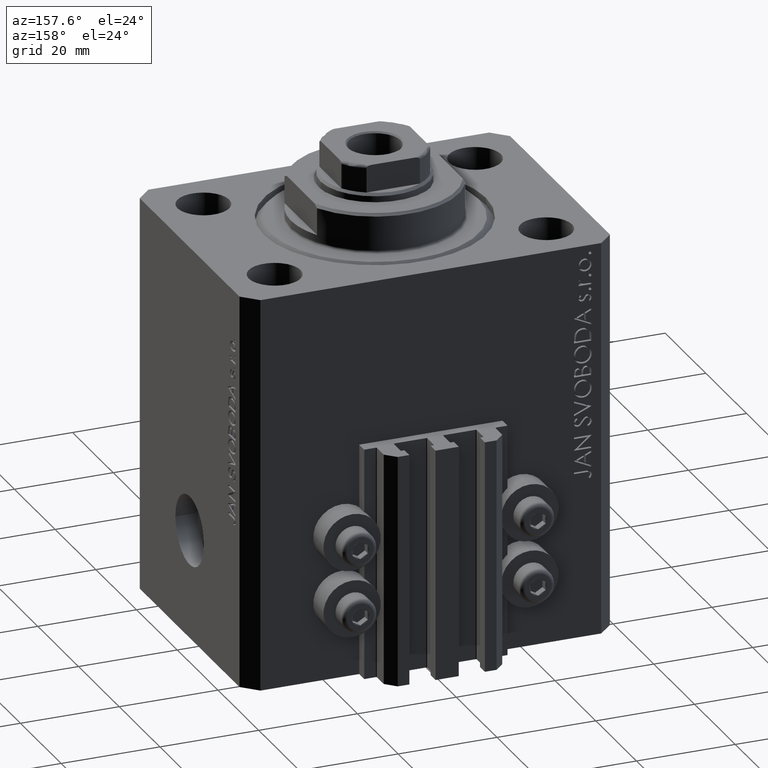
[diagram: clean part render]
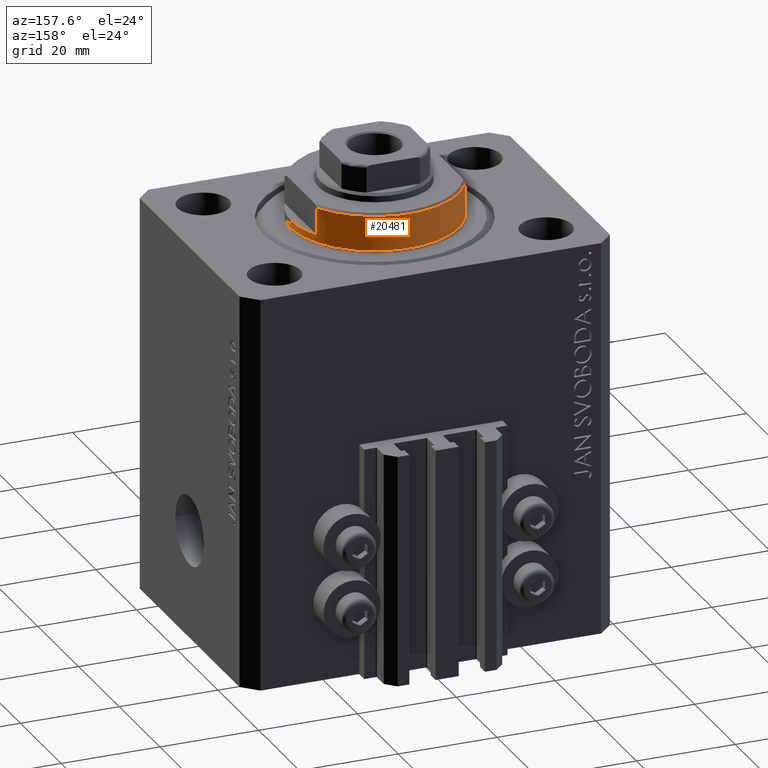
[diagram: same view with one face highlighted and labeled with its STEP entity id]
A machine part, auxiliary view. The second image highlights one B-rep face of the part: STEP entity #20481.
In plain terms, the highlighted cylindrical surface (partial cylindrical patch) has radius 17 mm, axis along (0, 0, -1).
Its self-contained STEP definition (entity closure, byte-faithful):
#24 = CARTESIAN_POINT ( 'NONE',  ( 0.000000000000000000, 0.000000000000000000, -7.500000000000007105 ) ) ;
#754 = VERTEX_POINT ( 'NONE', #47431 ) ;
#2005 = EDGE_CURVE ( 'NONE', #22467, #18962, #42855, .T. ) ;
#2058 = CARTESIAN_POINT ( 'NONE',  ( 14.99999999999999645, 8.000000000000003553, -2.000000000000000000 ) ) ;
#3001 = VERTEX_POINT ( 'NONE', #2058 ) ;
#3393 = DIRECTION ( 'NONE',  ( 0.000000000000000000, 0.000000000000000000, 1.000000000000000000 ) ) ;
#3606 = CARTESIAN_POINT ( 'NONE',  ( 17.00000000000000000, 0.000000000000000000, -8.000000000000000000 ) ) ;
#3820 = DIRECTION ( 'NONE',  ( -1.000000000000000000, 0.000000000000000000, 0.000000000000000000 ) ) ;
#3859 = CARTESIAN_POINT ( 'NONE',  ( -14.99999999999999645, 8.000000000000003553, -2.000000000000000000 ) ) ;
#4101 = CARTESIAN_POINT ( 'NONE',  ( 15.00000000000000000, 8.000000000000001776, -7.500000000000007105 ) ) ;
#4424 = DIRECTION ( 'NONE',  ( -0.000000000000000000, -0.000000000000000000, 1.000000000000000000 ) ) ;
#5424 = EDGE_CURVE ( 'NONE', #3001, #23456, #23055, .T. ) ;
#6658 = DIRECTION ( 'NONE',  ( -0.000000000000000000, -0.000000000000000000, 1.000000000000000000 ) ) ;
#7577 = CARTESIAN_POINT ( 'NONE',  ( -15.00000000000000000, 8.000000000000001776, -7.500000000000007105 ) ) ;
#7832 = ORIENTED_EDGE ( 'NONE', *, *, #15725, .F. ) ;
#8002 = LINE ( 'NONE', #22681, #15653 ) ;
#8387 = EDGE_CURVE ( 'NONE', #34349, #19575, #45044, .T. ) ;
#9679 = LINE ( 'NONE', #32663, #42095 ) ;
#10891 = CARTESIAN_POINT ( 'NONE',  ( 0.000000000000000000, 0.000000000000000000, -0.5000000000000004441 ) ) ;
#11125 = DIRECTION ( 'NONE',  ( 1.000000000000000000, 0.000000000000000000, 0.000000000000000000 ) ) ;
#13075 = CARTESIAN_POINT ( 'NONE',  ( 0.000000000000000000, 0.000000000000000000, -8.000000000000000000 ) ) ;
#14904 = DIRECTION ( 'NONE',  ( -0.000000000000000000, -0.000000000000000000, 1.000000000000000000 ) ) ;
#15653 = VECTOR ( 'NONE', #4424, 1000.000000000000000 ) ;
#15725 = EDGE_CURVE ( 'NONE', #23456, #754, #44413, .T. ) ;
#16125 = AXIS2_PLACEMENT_3D ( 'NONE', #13075, #21009, #35646 ) ;
#16712 = ORIENTED_EDGE ( 'NONE', *, *, #2005, .F. ) ;
#17092 = EDGE_CURVE ( 'NONE', #23515, #754, #40548, .T. ) ;
#17632 = CARTESIAN_POINT ( 'NONE',  ( 0.000000000000000000, 0.000000000000000000, -2.000000000000000000 ) ) ;
#18775 = EDGE_CURVE ( 'NONE', #19575, #18962, #9679, .T. ) ;
#18962 = VERTEX_POINT ( 'NONE', #3859 ) ;
#19575 = VERTEX_POINT ( 'NONE', #7577 ) ;
#20481 = ADVANCED_FACE ( 'NONE', ( #24842 ), #32033, .T. ) ;
#20745 = DIRECTION ( 'NONE',  ( -0.000000000000000000, -0.000000000000000000, 1.000000000000000000 ) ) ;
#21009 = DIRECTION ( 'NONE',  ( -0.000000000000000000, -0.000000000000000000, 1.000000000000000000 ) ) ;
#21234 = DIRECTION ( 'NONE',  ( 0.000000000000000000, 0.000000000000000000, -1.000000000000000000 ) ) ;
#22467 = VERTEX_POINT ( 'NONE', #44802 ) ;
#22681 = CARTESIAN_POINT ( 'NONE',  ( 15.00000000000000000, 8.000000000000001776, -8.000000000000000000 ) ) ;
#22997 = ORIENTED_EDGE ( 'NONE', *, *, #34815, .F. ) ;
#23055 = CIRCLE ( 'NONE', #34523, 17.00000000000000000 ) ;
#23456 = VERTEX_POINT ( 'NONE', #24142 ) ;
#23515 = VERTEX_POINT ( 'NONE', #45269 ) ;
#24142 = CARTESIAN_POINT ( 'NONE',  ( 17.00000000000000000, 0.000000000000000000, -2.000000000000000000 ) ) ;
#24560 = ORIENTED_EDGE ( 'NONE', *, *, #18775, .T. ) ;
#24842 = FACE_OUTER_BOUND ( 'NONE', #34831, .T. ) ;
#25365 = ORIENTED_EDGE ( 'NONE', *, *, #29167, .T. ) ;
#25548 = DIRECTION ( 'NONE',  ( -0.000000000000000000, -0.000000000000000000, -1.000000000000000000 ) ) ;
#28518 = LINE ( 'NONE', #39567, #46148 ) ;
#29013 = VECTOR ( 'NONE', #14904, 1000.000000000000000 ) ;
#29045 = AXIS2_PLACEMENT_3D ( 'NONE', #10891, #25548, #11125 ) ;
#29167 = EDGE_CURVE ( 'NONE', #22467, #23515, #28518, .T. ) ;
#31980 = AXIS2_PLACEMENT_3D ( 'NONE', #24, #3393, #40131 ) ;
#32033 = CYLINDRICAL_SURFACE ( 'NONE', #16125, 17.00000000000000000 ) ;
#32663 = CARTESIAN_POINT ( 'NONE',  ( -15.00000000000000000, 8.000000000000001776, -8.000000000000000000 ) ) ;
#33681 = AXIS2_PLACEMENT_3D ( 'NONE', #17632, #21234, #42359 ) ;
#34349 = VERTEX_POINT ( 'NONE', #4101 ) ;
#34523 = AXIS2_PLACEMENT_3D ( 'NONE', #40313, #36714, #3820 ) ;
#34815 = EDGE_CURVE ( 'NONE', #34349, #3001, #8002, .T. ) ;
#34831 = EDGE_LOOP ( 'NONE', ( #16712, #25365, #46166, #7832, #45276, #22997, #45917, #24560 ) ) ;
#35646 = DIRECTION ( 'NONE',  ( 1.000000000000000000, 0.000000000000000000, 0.000000000000000000 ) ) ;
#36714 = DIRECTION ( 'NONE',  ( 0.000000000000000000, 0.000000000000000000, -1.000000000000000000 ) ) ;
#39567 = CARTESIAN_POINT ( 'NONE',  ( -17.00000000000000000, 2.081899558550500280E-15, -8.000000000000000000 ) ) ;
#40131 = DIRECTION ( 'NONE',  ( -1.000000000000000000, 0.000000000000000000, 0.000000000000000000 ) ) ;
#40313 = CARTESIAN_POINT ( 'NONE',  ( 0.000000000000000000, 0.000000000000000000, -2.000000000000000000 ) ) ;
#40548 = CIRCLE ( 'NONE', #29045, 17.00000000000000000 ) ;
#42095 = VECTOR ( 'NONE', #20745, 1000.000000000000000 ) ;
#42359 = DIRECTION ( 'NONE',  ( -1.000000000000000000, 0.000000000000000000, 0.000000000000000000 ) ) ;
#42855 = CIRCLE ( 'NONE', #33681, 17.00000000000000000 ) ;
#44413 = LINE ( 'NONE', #3606, #29013 ) ;
#44802 = CARTESIAN_POINT ( 'NONE',  ( -17.00000000000000000, 2.081899558550500280E-15, -2.000000000000000000 ) ) ;
#45044 = CIRCLE ( 'NONE', #31980, 17.00000000000000000 ) ;
#45269 = CARTESIAN_POINT ( 'NONE',  ( -17.00000000000000000, 2.081899558550500280E-15, -0.5000000000000004441 ) ) ;
#45276 = ORIENTED_EDGE ( 'NONE', *, *, #5424, .F. ) ;
#45917 = ORIENTED_EDGE ( 'NONE', *, *, #8387, .T. ) ;
#46148 = VECTOR ( 'NONE', #6658, 1000.000000000000000 ) ;
#46166 = ORIENTED_EDGE ( 'NONE', *, *, #17092, .T. ) ;
#47431 = CARTESIAN_POINT ( 'NONE',  ( 17.00000000000000000, 0.000000000000000000, -0.5000000000000004441 ) ) ;